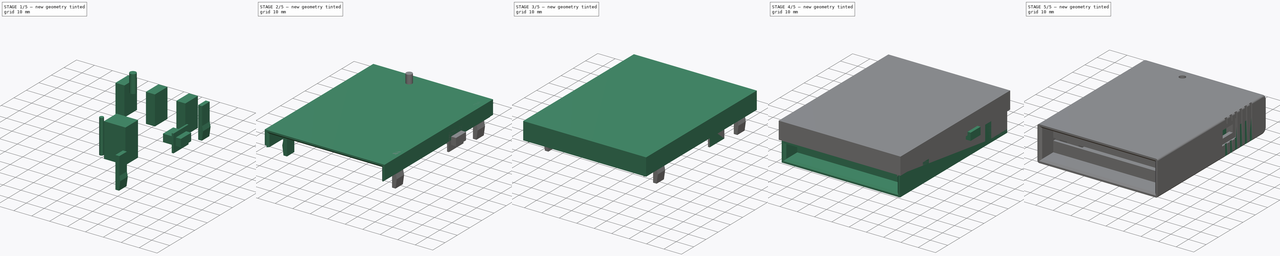
[diagram: build sequence overview — one tinted view per stage of 5, left to right]
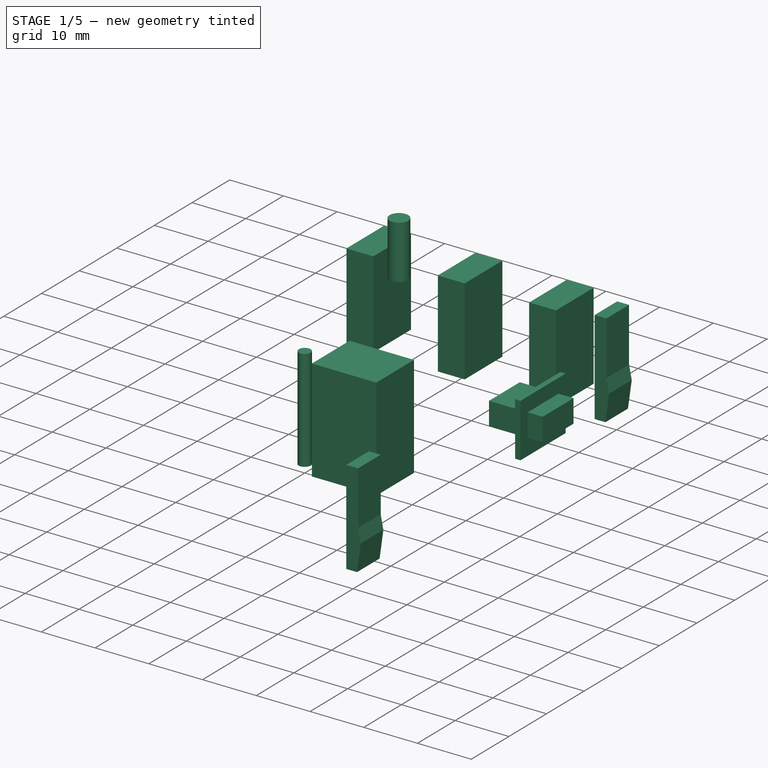
[diagram: stage 1 of 5 — iso view after this stage's code; geometry added in this stage tinted green]
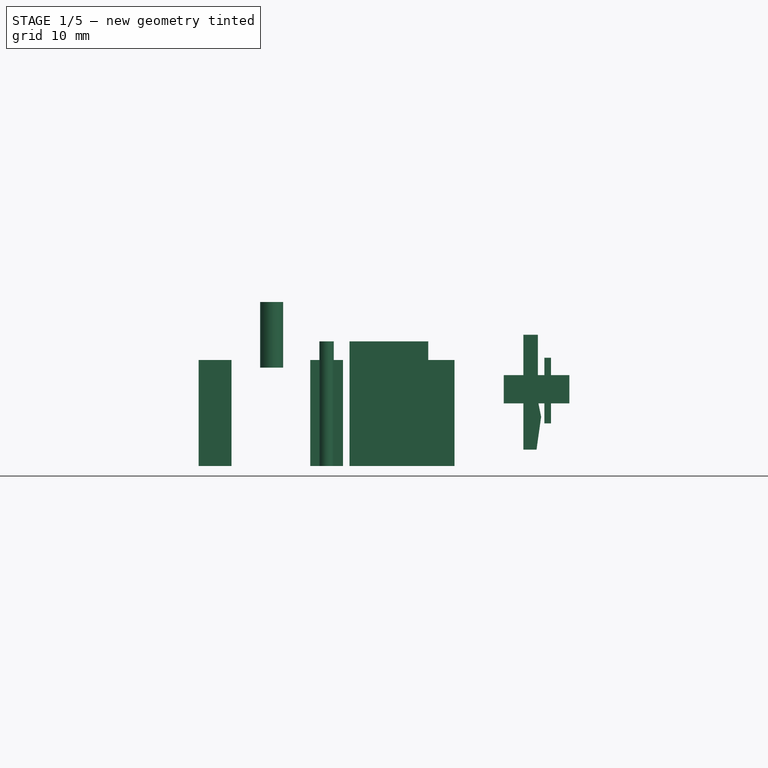
[diagram: stage 1 of 5 — front view after this stage's code; geometry added in this stage tinted green]
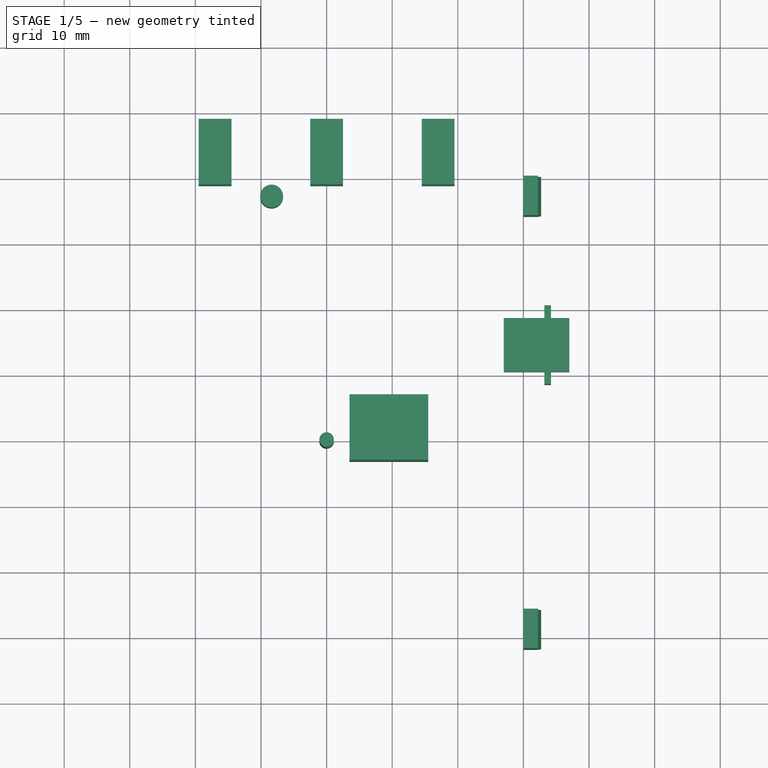
[diagram: stage 1 of 5 — top view after this stage's code; geometry added in this stage tinted green]
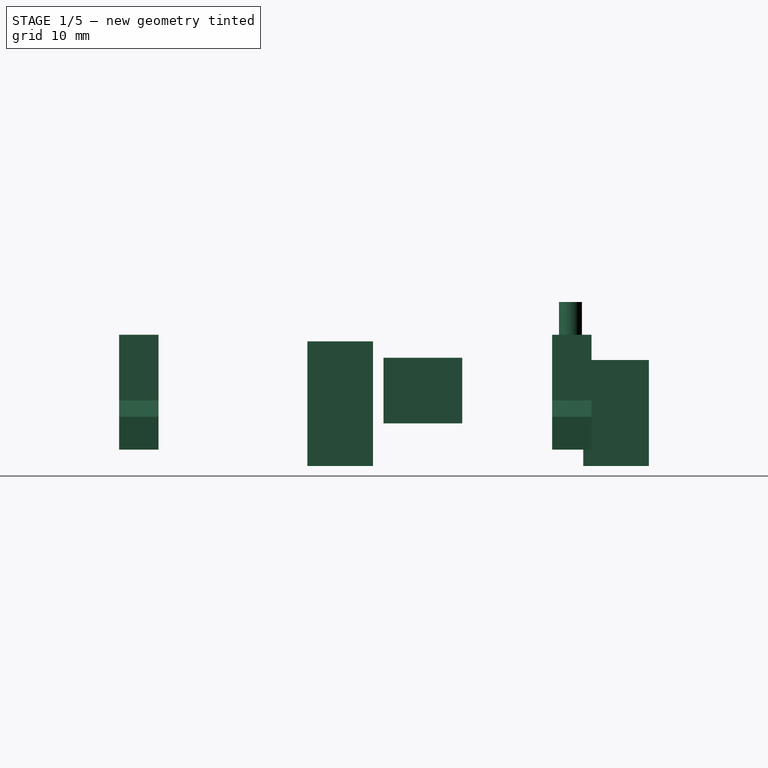
[diagram: stage 1 of 5 — right view after this stage's code; geometry added in this stage tinted green]
FCSTD DOCUMENT  (FreeCAD 0.16R6712 (Git))
Label: EF3-all
License: All rights reserved
LicenseURL: http://en.wikipedia.org/wiki/All_rights_reserved
objects: Part::Box×21, Part::FeaturePython×13, Part::MultiFuse×7, Part::Cut×7, Sketcher::SketchObject×6, PartDesign::Pad×6, Part::Chamfer×5, App::DocumentObjectGroup×4, Part::Cylinder×3, Part::Fillet×2, Part::Mirroring×2, Spreadsheet::Sheet×1, App::VRMLObject×1, PartDesign::Revolution×1, Part::Part2DObjectPython×1
note: 81 computed .brp shape members not serialized (recipe doc carries the construction recipe); baked Part::Feature solids carry a one-line shape summary decoded from their .brp

FEATURE [Part::Box] Box002  label="H taladro mini USB"
  Height = 4.3
  Length = 10
  Placement = pos=(27,10.4,9.55) rot=(0,0,1;0rad)
  Width = 8.2
  expr: Placement.Base.z = 7.95 + 1.6
  expr: Placement.Base.y = 14.5 - 8.199999999999999 / 2
FEATURE [Part::Cylinder] Cylinder002  label="H screw top"
  Angle = 360
  Height = 19
  Radius = 1.1
FEATURE [Part::Box] Box011  label="H button MENU"
  Height = 16.15
  Length = 5
  Placement = pos=(-19.5,38.94,0) rot=(0,0,1;0rad)
  Width = 10
  expr: Placement.Base.x = -17 - 2.5
  expr: Height = 7.95 + 1.6 + 6.6
  expr: Placement.Base.y = S.dy - 5
FEATURE [Part::Box] Box012  label="H button SPECIAL"
  Height = 16.15
  Length = 5
  Placement = pos=(-2.5,38.94,0) rot=(0,0,1;0rad)
  Width = 10
  expr: Placement.Base.x = -2.5
  expr: Height = 7.95 + 1.6 + 6.6
  expr: Placement.Base.y = S.dy - 5
FEATURE [Part::Box] Box013  label="H button RESET"
  Height = 16.15
  Length = 5
  Placement = pos=(14.5,38.94,0) rot=(0,0,1;0rad)
  Width = 10
  expr: Placement.Base.x = 17 - 2.5
  expr: Height = 7.95 + 1.6 + 6.6
  expr: Placement.Base.y = S.dy - 5
FEATURE [Part::FeaturePython] Clone001  label="H mini USB (clone)"  # Draft clone (typed FeaturePython)
  Objects = -> [Box002]
  Placement = pos=(27,10.4,9.55) rot=(0,0,1;0rad)
  Scale = (1,1,1)
FEATURE [Part::Box] Box014  label="H jumpers"
  Height = 19
  Length = 12
  Placement = pos=(3.5,-3.1,0) rot=(0,0,1;0rad)
  Width = 10
FEATURE [Part::Cylinder] Cylinder003  label="H led"
  Angle = 360
  Height = 10
  Placement = pos=(-8.38,37,15) rot=(0,0,1;0rad)
  Radius = 1.75
FEATURE [Part::Box] Box016  label="H cajeado USB"
  Height = 10
  Length = 1
  Placement = pos=(33.2,8.5,6.5) rot=(0,0,1;0rad)
  Width = 12
  expr: Placement.Base.x = S.dx * 1mm - Length
  expr: Placement.Base.z = -Height / 2 + 7.95mm + 1.6mm + 3.9mm / 2
  expr: Placement.Base.y = 14.5mm - Width / 2
FEATURE [Part::FeaturePython] Clone009  label="H USB cavity (clone 2)"  # Draft clone (typed FeaturePython)
  Objects = -> [Box016]
  Placement = pos=(33.2,8.5,6.5) rot=(0,0,1;0rad)
  Scale = (1,1,1)
FEATURE [Sketcher::SketchObject] Sketch007  label="Tab sk"
  Placement = pos=(32.2,-28.8,0) rot=(-1,0,0;4.71239rad)
  expr: Placement.Base.y = -28.8
  expr: Placement.Base.x = S.dx - S.ww
  sketch-geometry (6):
    g0: LineSegment StartX=-2.2 StartY=20 StartZ=0 EndX=0 EndY=20 EndZ=0
    g1: LineSegment StartX=0.5 StartY=7.5 StartZ=0 EndX=-0.2 EndY=2.5 EndZ=0
    g2: LineSegment StartX=0 StartY=20 StartZ=0 EndX=0 EndY=10 EndZ=0
    g3: LineSegment StartX=0 StartY=10 StartZ=0 EndX=0.5 EndY=7.5 EndZ=0
    g4: LineSegment StartX=-2.2 StartY=2.5 StartZ=0 EndX=-0.2 EndY=2.5 EndZ=0
    g5: LineSegment StartX=-2.2 StartY=20 StartZ=0 EndX=-2.2 EndY=2.5 EndZ=0
  constraints (18):
    c: Coincident(g2,g3)
    c: Coincident(g3,g1)
    c: Coincident(g2,g0)
    c: Horizontal(g0)
    c: DistanceX(g0,g0) = 2.2
    c: Vertical(g2)
    c: DistanceX(g2,g1) = 0.5
    c: DistanceY(g1,g1) = 5
    c: Coincident(g4,g1)
    c: Horizontal(g4)
    c: Coincident(g5,g0)
    c: Coincident(g5,g4)
    c: Vertical(g5)
    c: DistanceY(g-1,g0) = 20
    c: DistanceX(g4,g4) = 2
    c: DistanceY(g5,g5) = 17.5
    c: PointOnObject(g0,g-2)
    c: DistanceY(g3,g3) = 2.5
FEATURE [PartDesign::Pad] Pad005  label="Tab"
  Length = 6
  Length2 = 100
  Midplane = true
  Placement = pos=(32.2,-28.8,0) rot=(-1,0,0;4.71239rad)
  Sketch = -> Sketch007
  Type = 0
FEATURE [Part::FeaturePython] Array001  label="Tabs right"  # Draft array (typed FeaturePython)
  Angle = 360
  ArrayType = 0
  Axis = (0,0,1)
  Base = -> Pad005
  Center = (0,0,0)
  Fuse = false
  IntervalAxis = (0,0,0)
  IntervalX = (1,0,0)
  IntervalY = (0,66,0)
  IntervalZ = (0,0,0)
  NumberPolar = 1
  NumberX = 1
  NumberY = 2
  NumberZ = 1
FEATURE [Part::MultiFuse] Fusion013  label="Hollows top"
  Shapes = -> [Cylinder003,Box014,Box012,Box013,Cylinder002,Clone001,Box011,Clone009]
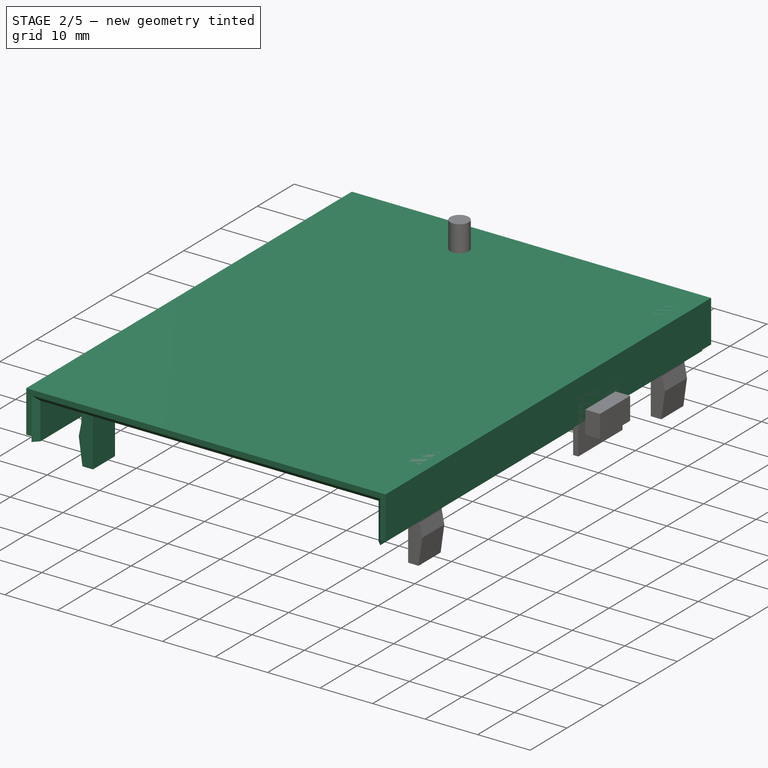
[diagram: stage 2 of 5 — iso view after this stage's code; geometry added in this stage tinted green]
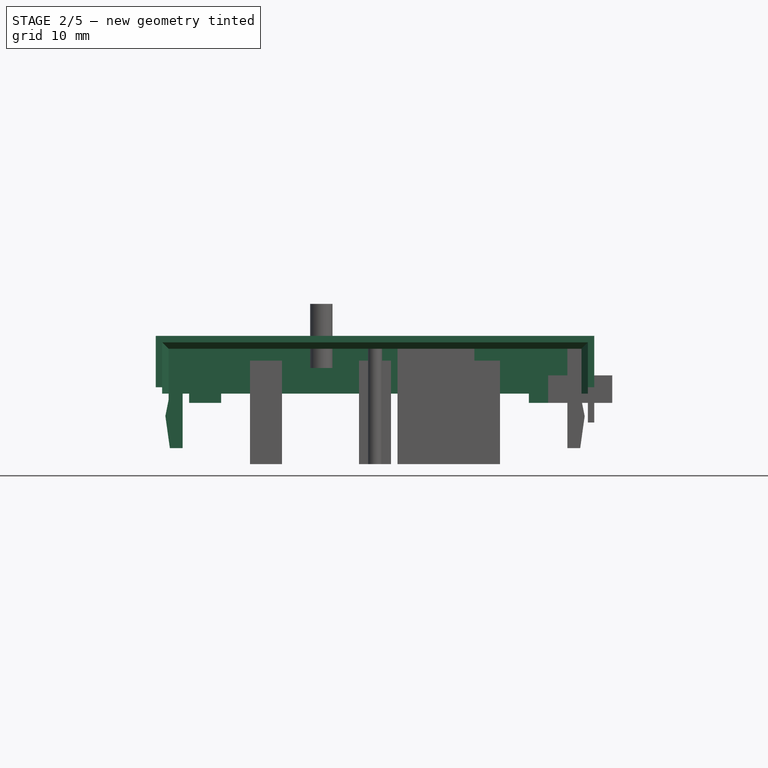
[diagram: stage 2 of 5 — front view after this stage's code; geometry added in this stage tinted green]
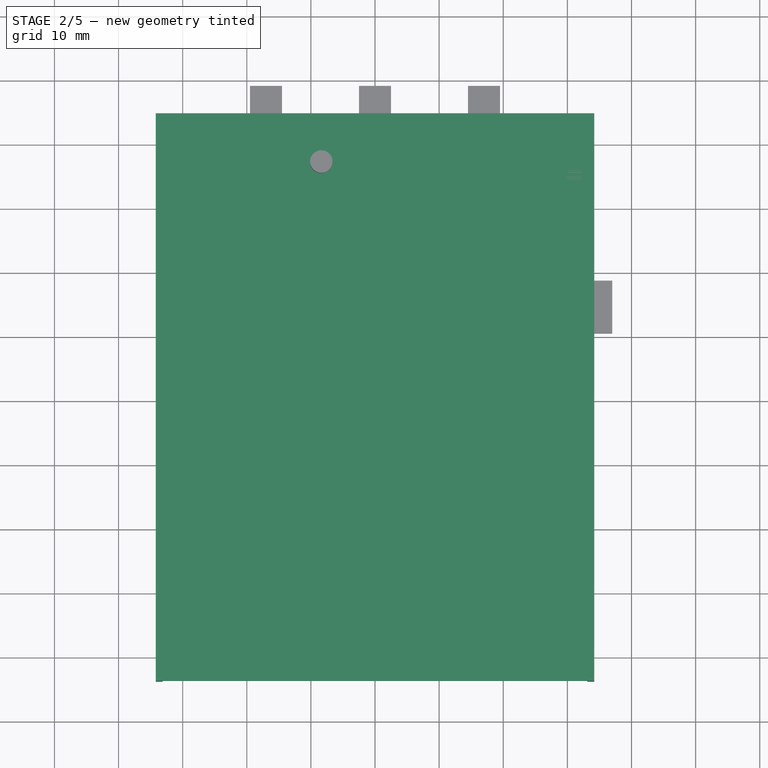
[diagram: stage 2 of 5 — top view after this stage's code; geometry added in this stage tinted green]
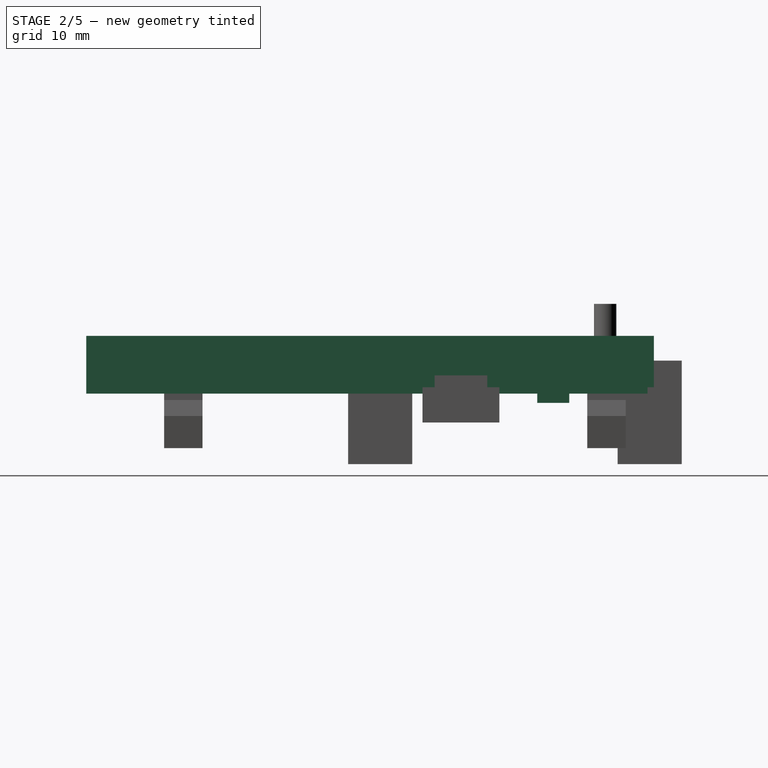
[diagram: stage 2 of 5 — right view after this stage's code; geometry added in this stage tinted green]
FEATURE [Part::Box] Box006  label="Top exterior"
  Height = 8
  Length = 68.4
  Placement = pos=(-34.2,-43.94,12) rot=(0,0,1;0rad)
  Width = 88.54
  expr: Placement.Base.y = -S.dy
  expr: Placement.Base.x = -S.dx
  expr: Width = S.y
  expr: Length = S.x
FEATURE [Part::Box] Box007  label="Top interior"
  Height = 2
  Length = 66.4
  Placement = pos=(-33.2,-43.94,11) rot=(0,0,1;0rad)
  Width = 87.54
  expr: Width = S.y - 1
  expr: Length = S.x - 2
  expr: Placement.Base.y = -S.dy
  expr: Placement.Base.x = -S.dx + 1
FEATURE [Part::Box] Box008  label="H interior top"
  Height = 18
  Length = 64.4
  Placement = pos=(-32.2,-45.94,0) rot=(0,0,1;0rad)
  Width = 88.54
  expr: Width = S.y
  expr: Length = S.x - 2 * 2
  expr: Placement.Base.y = -S.dy - 2
  expr: Height = 20 - 2
  expr: Placement.Base.x = -S.dx + 2
FEATURE [Part::MultiFuse] Fusion002  label="Top blocks"
  Shapes = -> [Box006,Box007]
FEATURE [Part::Cut] Cut001  label="Top structure"
  Base = -> Fusion002
  Tool = -> Box008
FEATURE [Part::Chamfer] Chamfer003  label="Chamfer top struct"
  Base = -> Cut001
  Edges = 3 edges r=1: [Edge10,Edge11,Edge12]
FEATURE [Part::Box] Box015  label="Refuerzo pared USB"
  Height = 20
  Length = 2
  Placement = pos=(31.2,4.5,0) rot=(0,0,1;0rad)
  Width = 20
  expr: Placement.Base.x = S.dx - 3
  expr: Placement.Base.y = 14.5 - 10
FEATURE [App::DocumentObjectGroup] Grupo003  label="Useless"
  Group = -> [Box004,Box005]
FEATURE [Part::FeaturePython] Clone008  label="Reinf USB wall (clone 2)"  # Draft clone (typed FeaturePython)
  Objects = -> [Box015]
  Placement = pos=(31.2,4.5,0) rot=(0,0,1;0rad)
  Scale = (1,1,1)
FEATURE [Part::Box] Box018  label="H min top"
  Height = 11
  Length = 70.4
  Placement = pos=(-35.2,-44.94,0) rot=(0,0,1;0rad)
  Width = 90.54
  expr: Placement.Base.y = -S.dy - 1
  expr: Placement.Base.x = -S.dx - 1
  expr: Width = S.y + 2
  expr: Length = S.x + 2
FEATURE [Part::Cut] Cut002  label="USB reinf cut"
  Base = -> Clone008
  Tool = -> Box018
FEATURE [Part::Box] Box020  label="Support 1 top"
  Height = 10.45
  Length = 5
  Placement = pos=(-29,26.4,9.55) rot=(0,0,1;0rad)
  Width = 5
  expr: Placement.Base.z = 7.95 + 1.6
  expr: Placement.Base.x = -S.dx + 5.2
  expr: Height = 20mm - Placement.Base.z
FEATURE [Part::Box] Box021  label="Support 2 top"
  Height = 10.45
  Length = 5
  Placement = pos=(24,26.4,9.55) rot=(0,0,1;0rad)
  Width = 5
  expr: Placement.Base.z = 7.95 + 1.6
  expr: Placement.Base.x = S.dx * 1mm - Width - 5.2mm
  expr: Height = 20mm - Placement.Base.z
FEATURE [Part::Mirroring] Part__Mirroring  label="Tabs left (mirror)"
  Base = (0,0,0)
  Normal = (1,0,0)
  Source = -> Array001
FEATURE [Part::MultiFuse] Fusion011  label="Tabs"
  Shapes = -> [Part__Mirroring,Array001]
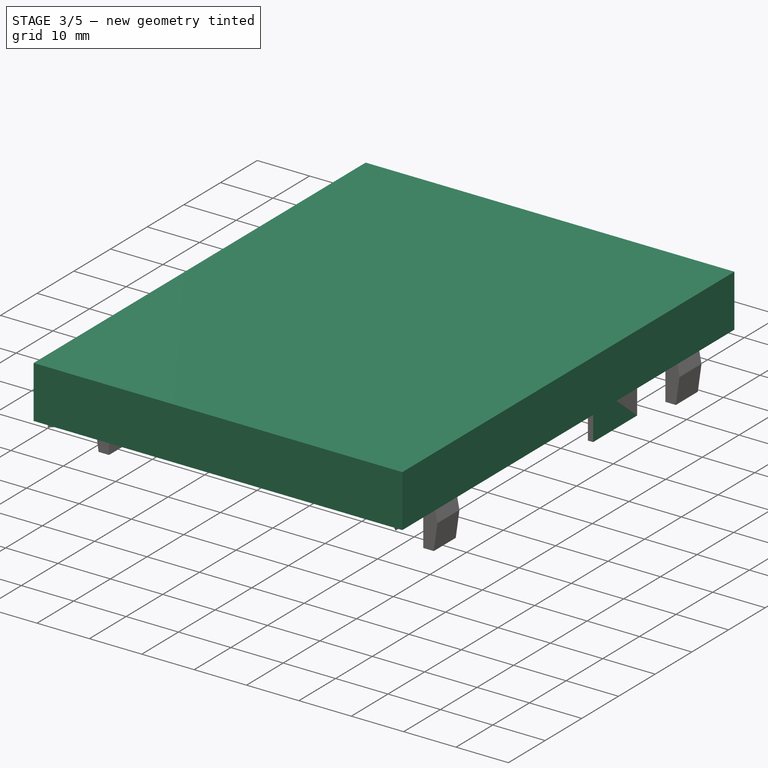
[diagram: stage 3 of 5 — iso view after this stage's code; geometry added in this stage tinted green]
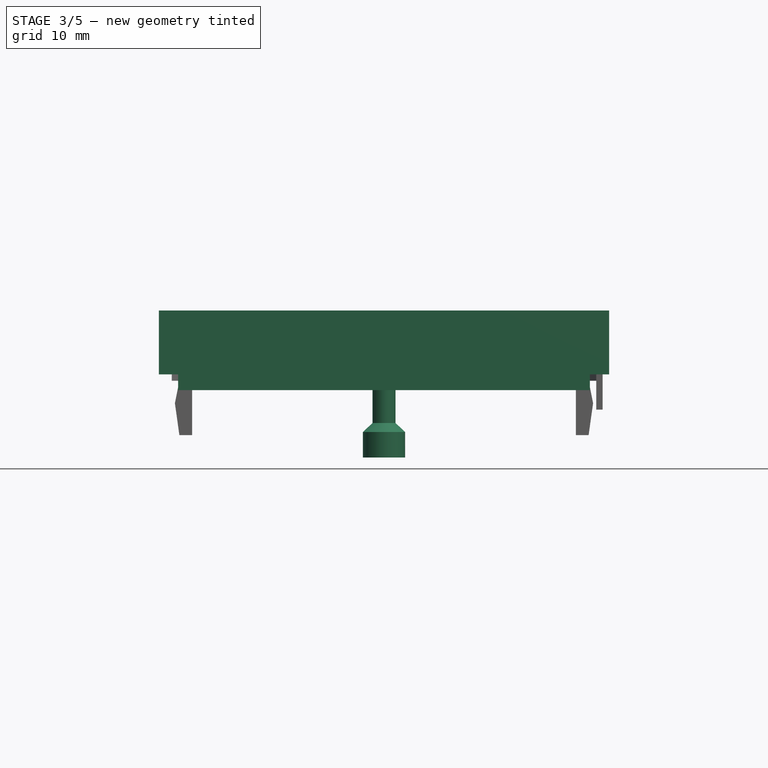
[diagram: stage 3 of 5 — front view after this stage's code; geometry added in this stage tinted green]
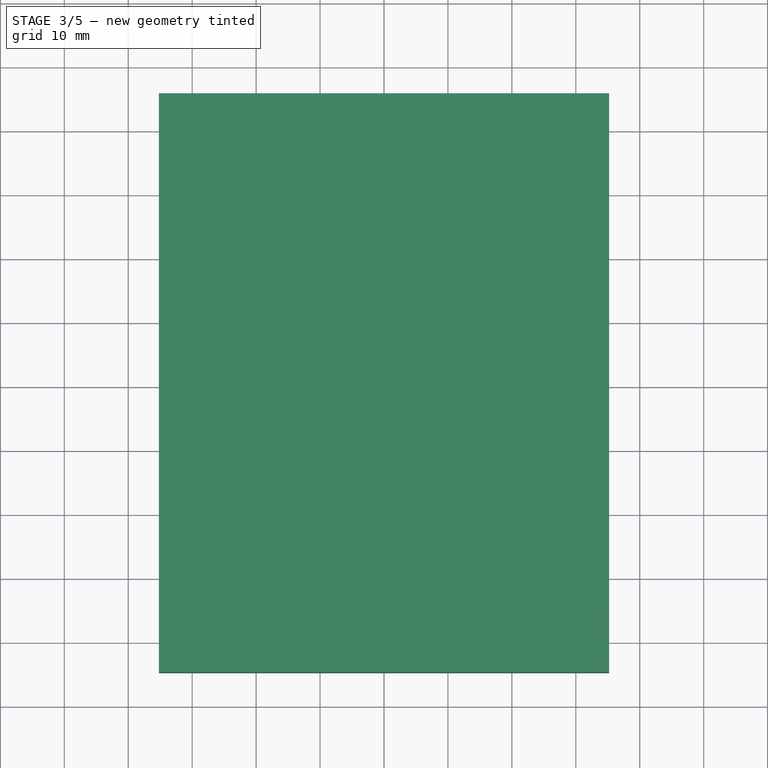
[diagram: stage 3 of 5 — top view after this stage's code; geometry added in this stage tinted green]
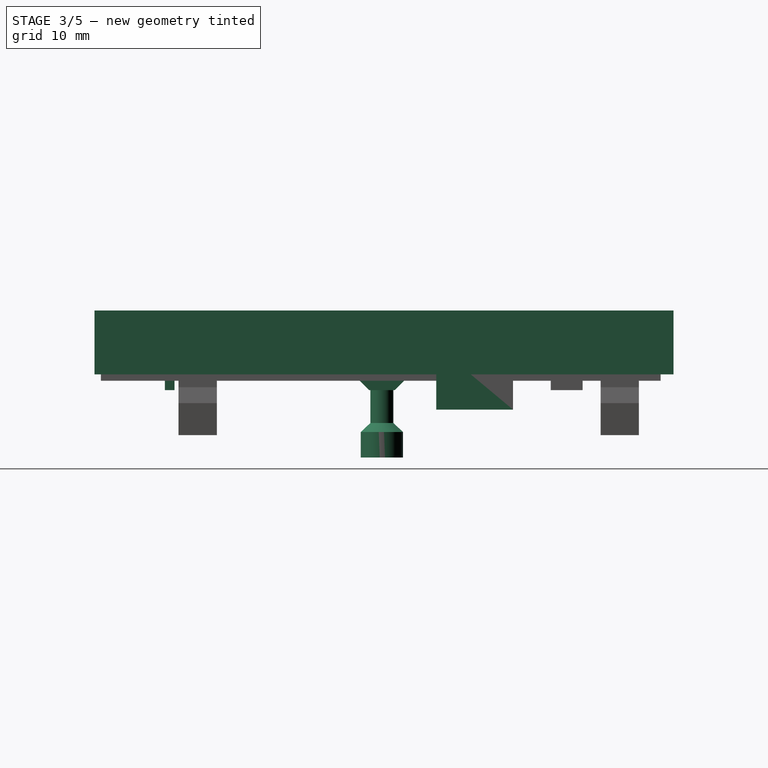
[diagram: stage 3 of 5 — right view after this stage's code; geometry added in this stage tinted green]
FEATURE [Spreadsheet::Sheet] Spreadsheet  label="S"
  cells = A1=x; B1(x)=68.40000000000001; A2=y; B2(y)=88.54000000000001; A3=dx; B3(dx)==B1 / 2; A4=dy; B4(dy)=43.94; A5=ww (wall width); B5(ww)=2
FEATURE [Part::Box] Box001  label="Muesca agarre"
  Height = 22
  Length = 1
  Placement = pos=(-0.5,0,-1) rot=(0,0,1;0rad)
  Width = 1.85
FEATURE [Part::FeaturePython] Array  label="H Muescas agarre"  # Draft array (typed FeaturePython)
  Angle = 360
  ArrayType = 0
  Axis = (0,0,1)
  Base = -> Box001
  Center = (0,0,0)
  Fuse = false
  IntervalAxis = (0,0,0)
  IntervalX = (68.4,0,0)
  IntervalY = (0,4,0)
  IntervalZ = (0,0,0)
  NumberPolar = 1
  NumberX = 2
  NumberY = 6
  NumberZ = 1
  Placement = pos=(-34.2,11,0) rot=(0,0,1;0rad)
  expr: Placement.Base.x = -S.dx
  expr: IntervalX.x = S.x
FEATURE [Part::Box] Box009  label="Post top"
  Height = 10.45
  Length = 5
  Placement = pos=(-2.5,-5,9.55) rot=(0,0,1;0rad)
  Width = 10
  expr: Placement.Base.z = 7.95 + 1.6
  expr: Height = 20 - 7.95 - 1.6
FEATURE [Part::Chamfer] Chamfer002  label="Chamfer post"
  Base = -> Box009
  Edges = 2 edges r=3: [Edge9,Edge11]
FEATURE [Part::Box] Box010  label="Top divider"
  Height = 10.45
  Length = 64.4
  Placement = pos=(-32.2,-33.94,9.55) rot=(0,0,1;0rad)
  Width = 1.5
  expr: Placement.Base.z = 7.95 + 1.6
  expr: Placement.Base.y = -S.dy + 10
  expr: Placement.Base.x = -S.dx + S.ww
  expr: Height = 20 - 7.95 - 1.6
  expr: Width = 1.5
  expr: Length = S.x - 2 * S.ww
FEATURE [Part::FeaturePython] Clone002  label="H notches (clone)"  # Draft clone (typed FeaturePython)
  Objects = -> [Array]
  Placement = pos=(-34.2,11,0) rot=(0,0,1;0rad)
  Scale = (1,1,1)
FEATURE [App::VRMLObject] ef3_pcb  label="ef3-pcb"
  Placement = pos=(-147.32,100.863,8.75) rot=(0,0,1;0rad)
  expr: Placement.Base.z = 7.95 + 0.8
FEATURE [Sketcher::SketchObject] Sketch004  label="cajeado tornillo bottom"
  Placement = pos=(0,0,0) rot=(1,0,0;1.5708rad)
  sketch-geometry (6):
    g0: LineSegment StartX=3.3 StartY=3 StartZ=0 EndX=3.3 EndY=-1 EndZ=0
    g1: LineSegment StartX=3.3 StartY=-1 StartZ=0 EndX=0 EndY=-1 EndZ=0
    g2: LineSegment StartX=0 StartY=12 StartZ=0 EndX=0 EndY=-1 EndZ=0
    g3: LineSegment StartX=3.3 StartY=3 StartZ=0 EndX=1.8 EndY=4.4 EndZ=0
    g4: LineSegment StartX=1.8 StartY=4.4 StartZ=0 EndX=1.8 EndY=12 EndZ=0
    g5: LineSegment StartX=1.8 StartY=12 StartZ=0 EndX=0 EndY=12 EndZ=0
  constraints (18):
    c: PointOnObject(g2,g-2)
    c: Vertical(g0)
    c: DistanceX(g1,g1) = 3.3
    c: Coincident(g1,g0)
    c: Horizontal(g1)
    c: Coincident(g2,g1)
    c: Vertical(g2)
    c: DistanceY(g1,g-1) = 1
    c: DistanceY(g-1,g0) = 3
    c: DistanceY(g-1,g2) = 12
    c: Coincident(g3,g0)
    c: Coincident(g4,g3)
    c: Vertical(g4)
    c: Coincident(g5,g4)
    c: Coincident(g5,g2)
    c: Horizontal(g5)
    c: DistanceX(g5,g5) = 1.8
    c: DistanceY(g3,g3) = 1.4
FEATURE [PartDesign::Revolution] Revolution  label="H bottom countersunk screw"
  Angle = 360
  Axis = (0,0,1)
  Base = (0,0,0)
  Placement = pos=(0,0,0) rot=(1,0,0;1.5708rad)
  ReferenceAxis = -> Sketch004 [V_Axis]
  Sketch = -> Sketch004
FEATURE [App::DocumentObjectGroup] Grupo  label="Masters"
  Group = -> [Box002,Array,Pad004,Box015,Box016]
FEATURE [Part::FeaturePython] Clone007  label="H USB cavity (clon)"  # Draft clone (typed FeaturePython)
  Objects = -> [Box016]
  Placement = pos=(33.2,8.5,6.5) rot=(0,0,1;0rad)
  Scale = (1,1,1)
FEATURE [Part::Box] Box017  label="H max bottom"
  Height = 10
  Length = 70.4
  Placement = pos=(-35.2,-44.94,12) rot=(0,0,1;0rad)
  Width = 90.54
  expr: Placement.Base.y = -S.dy - 1
  expr: Placement.Base.x = -S.dx - 1
  expr: Width = S.y + 2
  expr: Length = S.x + 2
FEATURE [App::DocumentObjectGroup] Grupo001  label="Case bottom"
  Group = -> [Cut005]
FEATURE [Part::MultiFuse] Fusion012  label="Solids top"
  Shapes = -> [Chamfer003,Box021,Box020,Cut002,Chamfer002,Box010,Fusion011]
FEATURE [Part::Cut] Cut006  label="Solids - hollows"
  Base = -> Fusion012
  Tool = -> Fusion013
FEATURE [Part::Fillet] Fillet
  Base = -> Cut006
  Edges = 5 edges: [Edge33 r=1,Edge34 r=3,Edge35 r=1,Edge36 r=1,Edge102 r=1]
FEATURE [Part::Cut] Cut007  label="TOP"
  Base = -> Fillet
  Tool = -> Clone002
FEATURE [App::DocumentObjectGroup] Grupo002  label="Case top"
  Group = -> [Cut007]
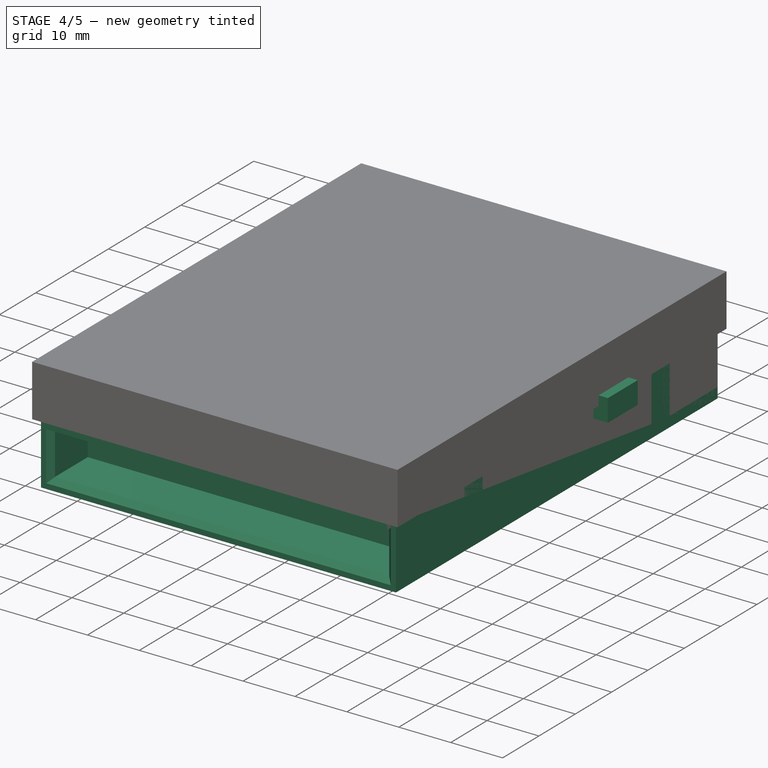
[diagram: stage 4 of 5 — iso view after this stage's code; geometry added in this stage tinted green]
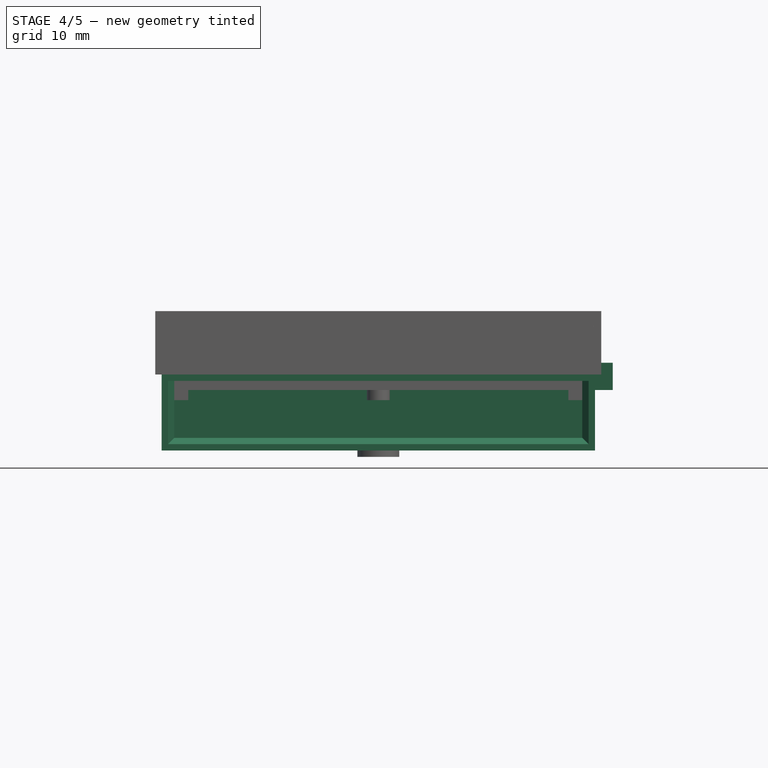
[diagram: stage 4 of 5 — front view after this stage's code; geometry added in this stage tinted green]
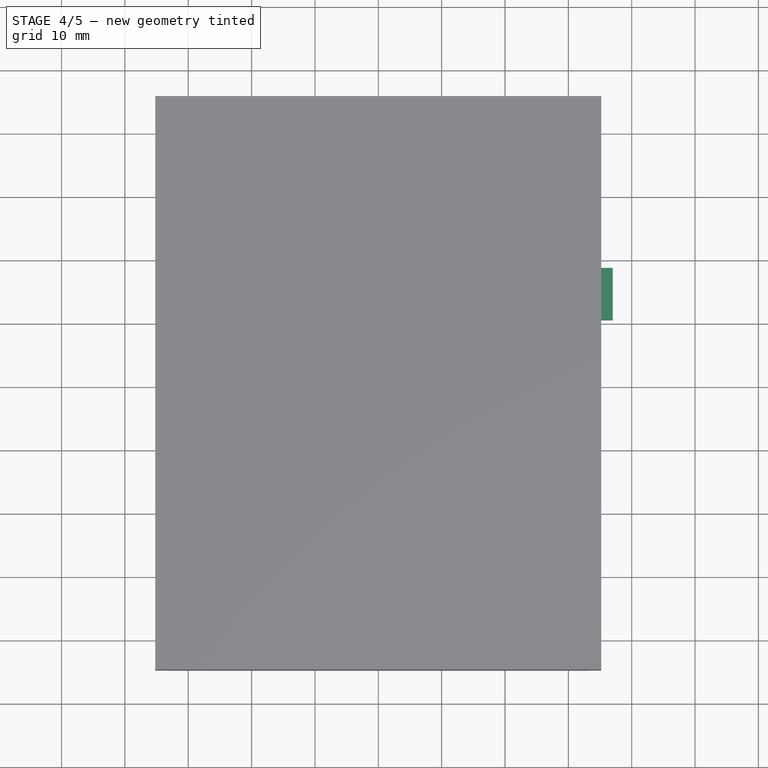
[diagram: stage 4 of 5 — top view after this stage's code; geometry added in this stage tinted green]
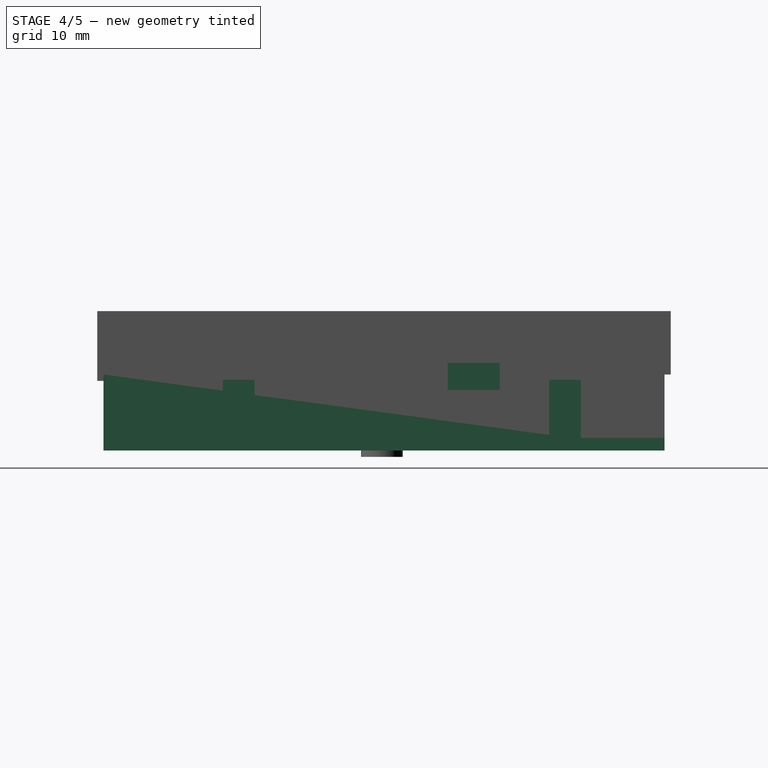
[diagram: stage 4 of 5 — right view after this stage's code; geometry added in this stage tinted green]
FEATURE [Part::Box] Box  label="Base"
  Height = 2
  Length = 68.4
  Placement = pos=(-34.2,-43.94,0) rot=(0,0,1;0rad)
  Width = 88.54
  expr: Height = S.ww
  expr: Width = S.y
  expr: Length = S.x
FEATURE [Sketcher::SketchObject] Sketch  label="Bottom reinf sk"
  sketch-geometry (4):
    g0: LineSegment StartX=-4 StartY=9 StartZ=0 EndX=4 EndY=9 EndZ=0
    g1: LineSegment StartX=4 StartY=9 StartZ=0 EndX=4 EndY=-9 EndZ=0
    g2: LineSegment StartX=4 StartY=-9 StartZ=0 EndX=-4 EndY=-9 EndZ=0
    g3: LineSegment StartX=-4 StartY=-9 StartZ=0 EndX=-4 EndY=9 EndZ=0
  constraints (13):
    c: Horizontal(g0)
    c: Coincident(g0,g1)
    c: Vertical(g1)
    c: Horizontal(g2)
    c: Coincident(g3,g0)
    c: Vertical(g3)
    c: Symmetric(g0,g0,g-2)
    c: Symmetric(g2,g2,g-2)
    c: DistanceX(g0,g0) = 8
    c: DistanceY(g2,g0) = 18
    c: Coincident(g1,g2)
    c: Coincident(g3,g2)
    c: Symmetric(g0,g2,g-1)
FEATURE [PartDesign::Pad] Pad  label="Bottom reinf"
  Length = 7.95
  Length2 = 100
  Sketch = -> Sketch
  Type = 0
  expr: Length = 7.95
FEATURE [Sketcher::SketchObject] Sketch001  label="Sk walls"
  Placement = pos=(-34.2,-43.94,0) rot=(0,0,1;0rad)
  sketch-geometry (8):
    g0: LineSegment StartX=68.4 StartY=88.54 StartZ=0 EndX=68.4 EndY=0 EndZ=0
    g1: LineSegment StartX=0 StartY=0 StartZ=0 EndX=0 EndY=88.54 EndZ=0
    g2: LineSegment StartX=66.4 StartY=86.54 StartZ=0 EndX=66.4 EndY=0 EndZ=0
    g3: LineSegment StartX=2 StartY=0 StartZ=0 EndX=2 EndY=86.54 EndZ=0
    g4: LineSegment StartX=66.4 StartY=0 StartZ=0 EndX=68.4 EndY=0 EndZ=0
    g5: LineSegment StartX=2 StartY=0 StartZ=0 EndX=0 EndY=0 EndZ=0
    g6: LineSegment StartX=0 StartY=88.54 StartZ=0 EndX=68.4 EndY=88.54 EndZ=0
    g7: LineSegment StartX=2 StartY=86.54 StartZ=0 EndX=66.4 EndY=86.54 EndZ=0
  constraints (23):
    c: Vertical(g0)
    c: Vertical(g1)
    c: DistanceX(g1,g0) = 68.4
    c: DistanceY(g0,g0) = 88.54
    c: Vertical(g2)
    c: Vertical(g3)
    c: DistanceX(g1,g3) = 2
    c: DistanceX(g2,g0) = 2
    c: Horizontal(g4)
    c: Coincident(g4,g2)
    c: Coincident(g4,g0)
    c: Coincident(g1,g-1)
    c: Coincident(g5,g3)
    c: Coincident(g5,g-1)
    c: Horizontal(g5)
    c: Coincident(g6,g1)
    c: Coincident(g6,g0)
    c: Horizontal(g6)
    c: Coincident(g7,g3)
    c: Coincident(g7,g2)
    c: Horizontal(g7)
    c: DistanceY(g2,g0) = 2
    c: PointOnObject(g2,g-1)
FEATURE [Sketcher::SketchObject] Sketch002  label="Sk divider"
  Placement = pos=(-34.2,-43.94,0) rot=(0,0,1;0rad)
  expr: Placement.Base.y = -S.dy
  expr: Placement.Base.x = -S.dx
  sketch-geometry (4):
    g0: LineSegment StartX=0 StartY=11.5 StartZ=0 EndX=68.4 EndY=11.5 EndZ=0
    g1: LineSegment StartX=68.4 StartY=11.5 StartZ=0 EndX=68.4 EndY=10 EndZ=0
    g2: LineSegment StartX=68.4 StartY=10 StartZ=0 EndX=0 EndY=10 EndZ=0
    g3: LineSegment StartX=0 StartY=10 StartZ=0 EndX=0 EndY=11.5 EndZ=0
  constraints (12):
    c: Coincident(g0,g1)
    c: Coincident(g1,g2)
    c: Coincident(g2,g3)
    c: Coincident(g3,g0)
    c: Horizontal(g0)
    c: Horizontal(g2)
    c: Vertical(g1)
    c: Vertical(g3)
    c: DistanceY(g1,g0) = 1.5
    c: DistanceY(g-1,g2) = 10
    c: PointOnObject(g2,g-2)
    c: DistanceX(g0,g0) = 68.4
FEATURE [PartDesign::Pad] Pad002  label="Divider"
  Length = 7.95
  Length2 = 100
  Placement = pos=(-34.2,-43.94,0) rot=(0,0,1;0rad)
  Sketch = -> Sketch002
  Type = 0
FEATURE [PartDesign::Pad] Pad003  label="Walls"
  Length = 12
  Length2 = 100
  Placement = pos=(-34.2,-43.94,0) rot=(0,0,1;0rad)
  Sketch = -> Sketch001
  Type = 0
FEATURE [Part::Box] Box003  label="H bottom cavity"
  Height = 10
  Length = 66.4
  Placement = pos=(-33.2,-44.94,11) rot=(0,0,1;0rad)
  Width = 88.54
  expr: Placement.Base.y = -S.dy - 1
  expr: Placement.Base.x = -S.dx + 1
  expr: Width = S.y
  expr: Length = S.x - 2
FEATURE [Part::Chamfer] Chamfer001  label="Chamfer base"
  Base = -> Box
  Edges = 1 edges r=1: [Edge10]
FEATURE [Part::FeaturePython] Clone003  label="H USB hole (clon)"  # Draft clone (typed FeaturePython)
  Objects = -> [Box002]
  Placement = pos=(27,10.4,9.55) rot=(0,0,1;0rad)
  Scale = (1,1,1)
FEATURE [Part::Chamfer] Chamfer  label="Chamfer bottom reinf"
  Base = -> Pad
  Edges = 2 edges r=4: [Edge4,Edge10]
FEATURE [Sketcher::SketchObject] Sketch005
  Placement = pos=(-34.2,0,0) rot=(1,0,0;1.5708rad)
  expr: Constraints[32] = S.x
  expr: Placement.Base.x = -S.dx
  sketch-geometry (12):
    g0: LineSegment StartX=0 StartY=0 StartZ=0 EndX=0 EndY=11.15 EndZ=0
    g1: LineSegment StartX=0 StartY=11.15 StartZ=0 EndX=5.2 EndY=11.15 EndZ=0
    g2: LineSegment StartX=5.2 StartY=11.15 StartZ=0 EndX=5.2 EndY=7.95 EndZ=0
    g3: LineSegment StartX=5.2 StartY=7.95 StartZ=0 EndX=10.2 EndY=7.95 EndZ=0
    g4: LineSegment StartX=10.2 StartY=7.95 StartZ=0 EndX=10.2 EndY=0 EndZ=0
    g5: LineSegment StartX=10.2 StartY=0 StartZ=0 EndX=0 EndY=0 EndZ=0
    g6: LineSegment StartX=68.4 StartY=11.15 StartZ=0 EndX=63.2 EndY=11.15 EndZ=0
    g7: LineSegment StartX=63.2 StartY=11.15 StartZ=0 EndX=63.2 EndY=7.95 EndZ=0
    g8: LineSegment StartX=63.2 StartY=7.95 StartZ=0 EndX=58.2 EndY=7.95 EndZ=0
    g9: LineSegment StartX=58.2 StartY=7.95 StartZ=0 EndX=58.2 EndY=0 EndZ=0
    g10: LineSegment StartX=58.2 StartY=0 StartZ=0 EndX=68.4 EndY=0 EndZ=0
    g11: LineSegment StartX=68.4 StartY=0 StartZ=0 EndX=68.4 EndY=11.15 EndZ=0
  constraints (35):
    c: Coincident(g-1,g0)
    c: Coincident(g0,g1)
    c: Horizontal(g1)
    c: Coincident(g1,g2)
    c: Vertical(g2)
    c: Coincident(g2,g3)
    c: Horizontal(g3)
    c: Coincident(g3,g4)
    c: Vertical(g4)
    c: Coincident(g4,g5)
    c: Coincident(g5,g0)
    c: Horizontal(g5)
    c: DistanceY(g4,g4) = 7.95
    c: DistanceY(g2,g2) = 3.2  'Grosor PCB x2'
    c: DistanceX(g3,g3) = 5  'Constraint16'
    c: Horizontal(g6)
    c: Coincident(g6,g7)
    c: Vertical(g7)
    c: Coincident(g7,g8)
    c: Horizontal(g8)
    c: Coincident(g8,g9)
    c: PointOnObject(g9,g-1)
    c: Vertical(g9)
    c: Coincident(g9,g10)
    c: PointOnObject(g10,g-1)
    c: Coincident(g10,g11)
    c: Coincident(g11,g6)
    c: Vertical(g11)
    c: DistanceX(g6,g6) = 5.2
    c: DistanceX(g8,g8) = 5
    c: DistanceY(g9,g9) = 7.95
    c: DistanceY(g7,g7) = 3.2
    c: DistanceX(g-1,g10) = 68.4
    c: DistanceX(g1,g1) = 5.2
    c: Vertical(g0)
FEATURE [PartDesign::Pad] Pad004  label="Soporte esquinas bottom"
  Length = 5
  Length2 = 100
  Placement = pos=(-34.2,0,0) rot=(1,0,0;1.5708rad)
  Reversed = true
  Sketch = -> Sketch005
  Type = 0
FEATURE [Part::FeaturePython] Clone004  label="Bottom support 1"  # Draft clone (typed FeaturePython)
  Objects = -> [Pad004]
  Placement = pos=(-34.2,26.4,0) rot=(1,0,0;1.5708rad)
  Scale = (1,1,1)
  expr: Placement.Base.y = 26.4
FEATURE [Part::FeaturePython] Clone005  label="Bottom support 2"  # Draft clone (typed FeaturePython)
  Objects = -> [Pad004]
  Placement = pos=(-34.2,-25.1,0) rot=(1,0,0;1.5708rad)
  Scale = (1,1,1)
  expr: Placement.Base.y = -20.1 - 5
FEATURE [Part::FeaturePython] Clone006  label="USB wall reinf (clone)"  # Draft clone (typed FeaturePython)
  Objects = -> [Box015]
  Placement = pos=(31.2,4.5,0) rot=(0,0,1;0rad)
  Scale = (1,1,1)
FEATURE [Part::Chamfer] Chamfer004  label="Chamfer walls"
  Base = -> Pad003
  Edges = 2 edges r=1: [Edge1,Edge14]
FEATURE [Part::MultiFuse] Fusion  label="Bottom hollows"
  Shapes = -> [Clone003,Box003,Revolution,Clone007,Box017]
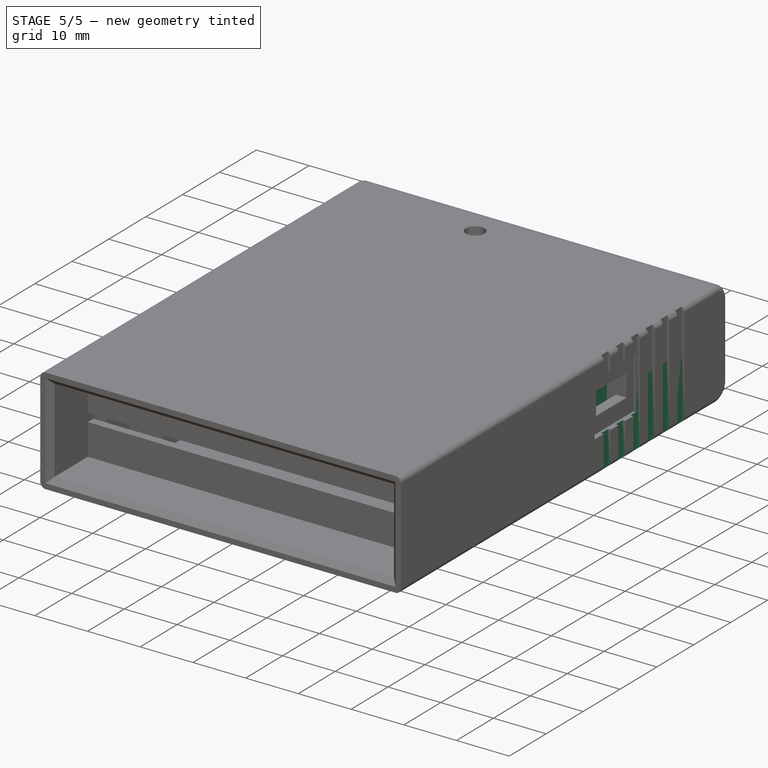
[diagram: stage 5 of 5 — iso view after this stage's code; geometry added in this stage tinted green]
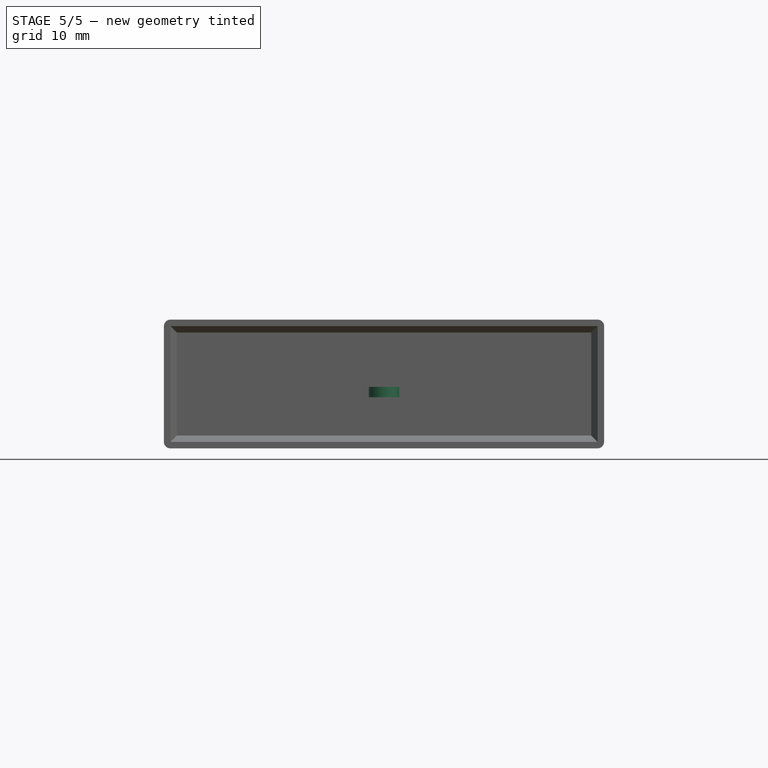
[diagram: stage 5 of 5 — front view after this stage's code; geometry added in this stage tinted green]
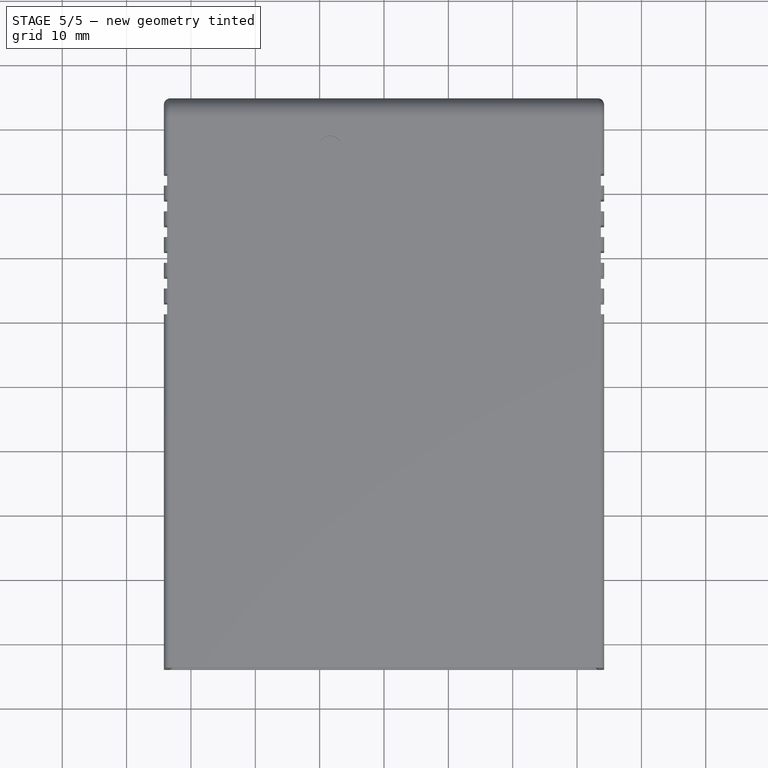
[diagram: stage 5 of 5 — top view after this stage's code; geometry added in this stage tinted green]
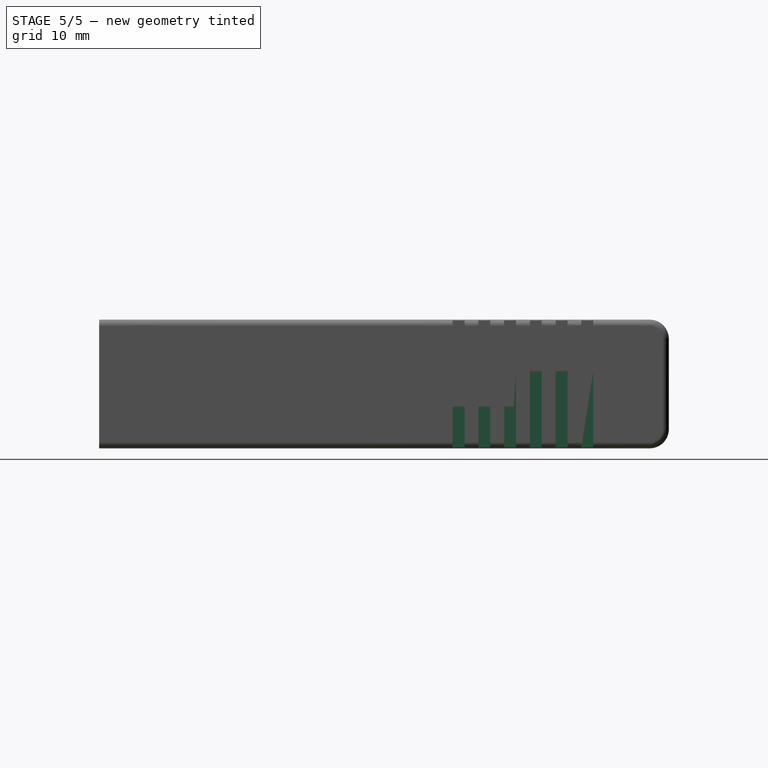
[diagram: stage 5 of 5 — right view after this stage's code; geometry added in this stage tinted green]
FEATURE [Part::Cylinder] Cylinder  label="Post"
  Angle = 360
  Height = 9.55
  Radius = 2.375
  expr: Height = 7.95 + 1.6
  expr: Radius = 4.75 / 2
FEATURE [Part::Box] Box004  label="Apoyo izdo"
  Height = 7.95
  Length = 5
  Placement = pos=(20,20,0) rot=(0,0,1;0rad)
  Width = 5
FEATURE [Part::Box] Box005  label="Apoyo dcho"
  Height = 7.95
  Length = 5
  Placement = pos=(-25,20,0) rot=(0,0,1;0rad)
  Width = 5
FEATURE [Part::FeaturePython] Clone  label="H vertical notches (clon)"  # Draft clone (typed FeaturePython)
  Objects = -> [Array]
  Placement = pos=(-34.2,11,0) rot=(0,0,1;0rad)
  Scale = (1,1,1)
FEATURE [Part::MultiFuse] Fusion005  label="Bottom solids"
  Shapes = -> [Chamfer001,Cylinder,Pad002,Chamfer,Clone004,Clone005,Clone006,Chamfer004]
FEATURE [Part::Cut] Cut
  Base = -> Fusion005
  Tool = -> Fusion
FEATURE [Part::Fillet] Fillet001
  Base = -> Cut
  Edges = 5 edges: [Edge182 r=1,Edge183 r=1,Edge184 r=3,Edge185 r=1,Edge187 r=1]
FEATURE [Part::Part2DObjectPython] Clone2D  label="Clone of Tab sk"  # Draft 2D object (typed FeaturePython)
  Objects = -> [Sketch007]
  Placement = pos=(32.5,-28.8,0) rot=(-1,0,0;4.71239rad)
  Scale = (1,1,1)
  expr: Placement.Base.x = S.dx - S.ww + 0.3
FEATURE [PartDesign::Pad] Pad006  label="Tab + tolerance"
  Length = 6.6
  Length2 = 100
  Midplane = true
  Placement = pos=(32.5,-28.8,0) rot=(-1,0,0;4.71239rad)
  Sketch = -> Clone2D
  Type = 0
FEATURE [Part::FeaturePython] Array002  label="Tab hollows right pair"  # Draft array (typed FeaturePython)
  Angle = 360
  ArrayType = 0
  Axis = (0,0,1)
  Base = -> Pad006
  Center = (0,0,0)
  Fuse = false
  IntervalAxis = (0,0,0)
  IntervalX = (1,0,0)
  IntervalY = (0,66,0)
  IntervalZ = (0,0,0)
  NumberPolar = 1
  NumberX = 1
  NumberY = 2
  NumberZ = 1
FEATURE [Part::Mirroring] Part__Mirroring001  label="Tab hollows left (mirror)"
  Base = (0,0,0)
  Normal = (1,0,0)
  Source = -> Array002
FEATURE [Part::MultiFuse] Fusion010  label="H tabs"
  Shapes = -> [Part__Mirroring001,Array002]
FEATURE [Part::Cut] Cut004
  Base = -> Fillet001
  Tool = -> Clone
FEATURE [Part::Cut] Cut005  label="BOTTOM"
  Base = -> Cut004
  Tool = -> Fusion010
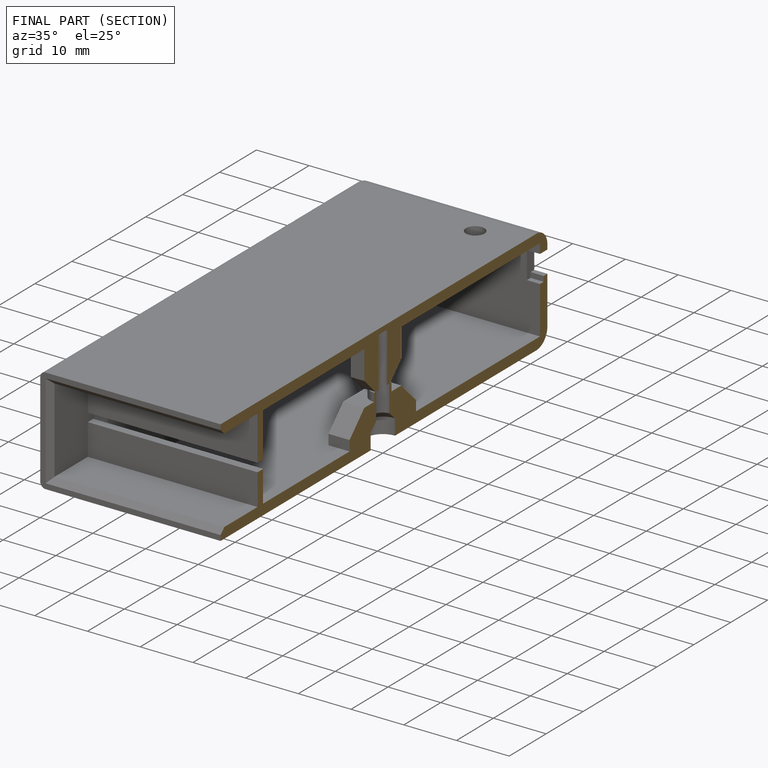
[diagram: finished part — half-section view (interior)]
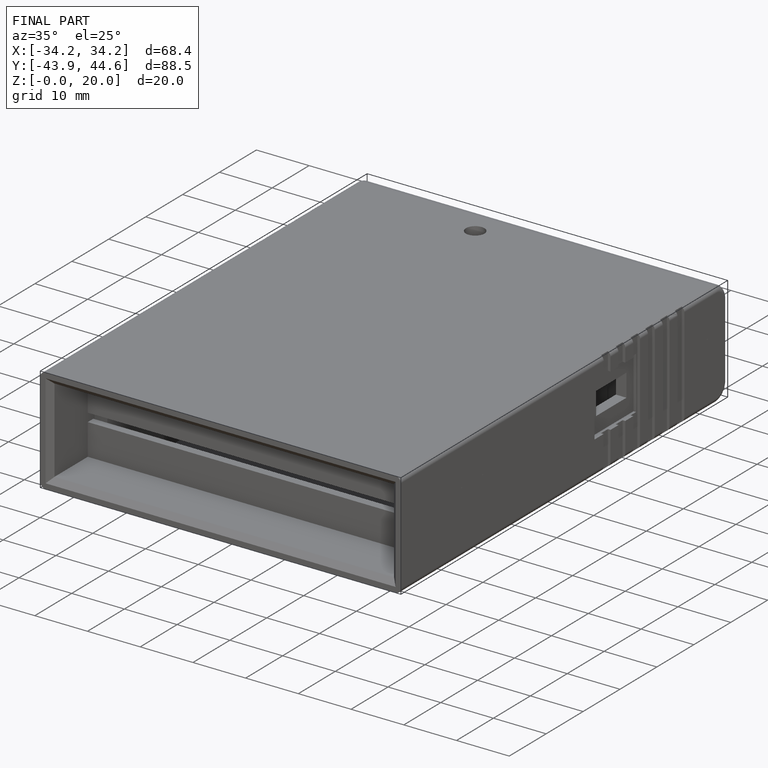
[diagram: finished part — iso view with bounding-box wireframe]
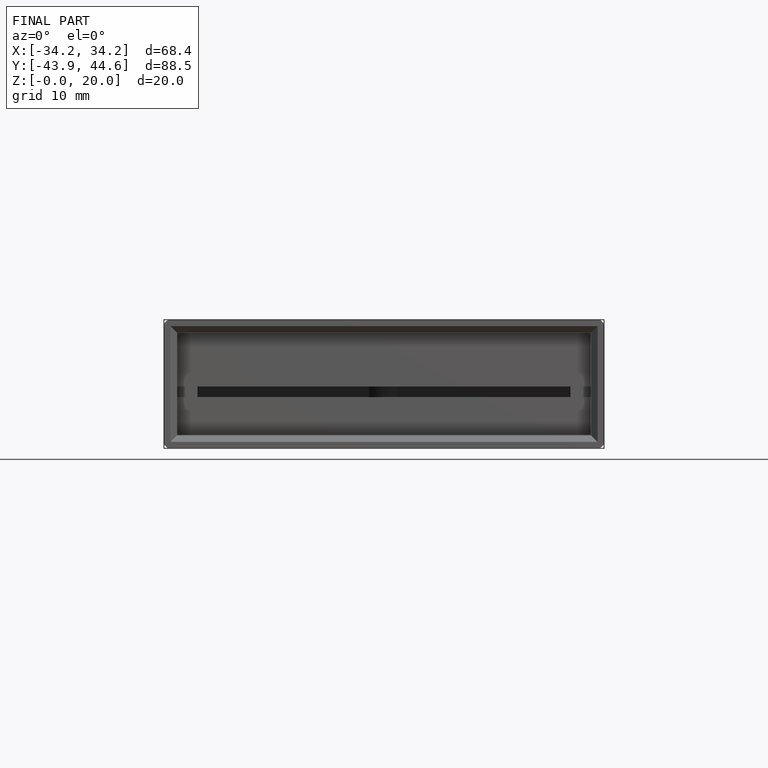
[diagram: finished part — front view with bounding-box wireframe]
